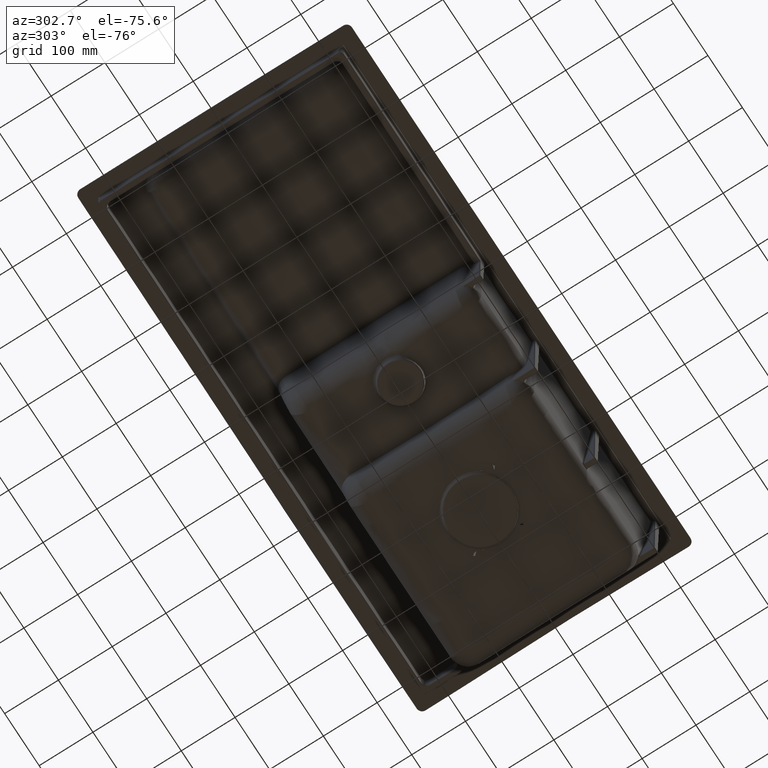
[diagram: clean part render]
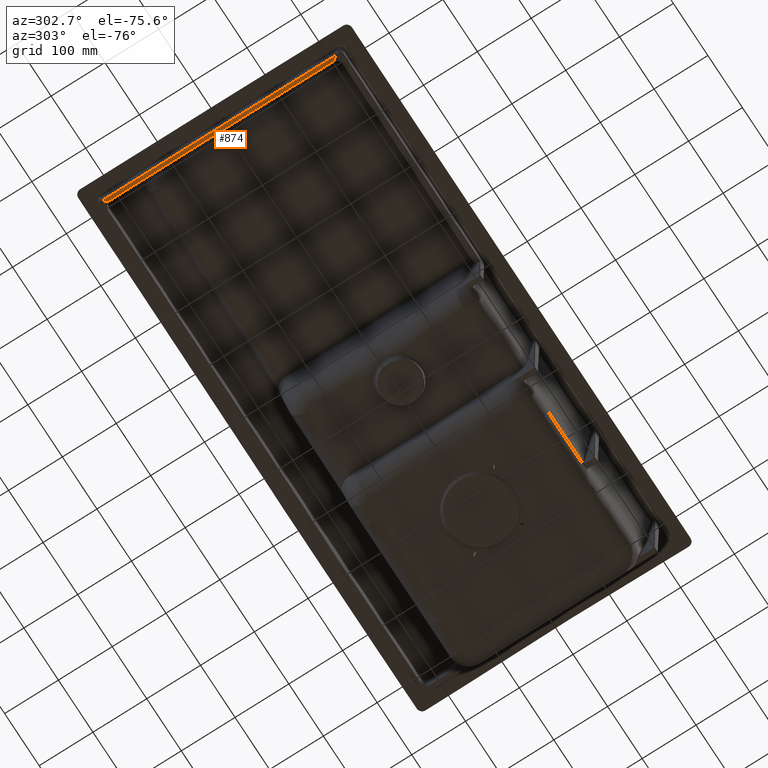
[diagram: same view with one face highlighted and labeled with its STEP entity id]
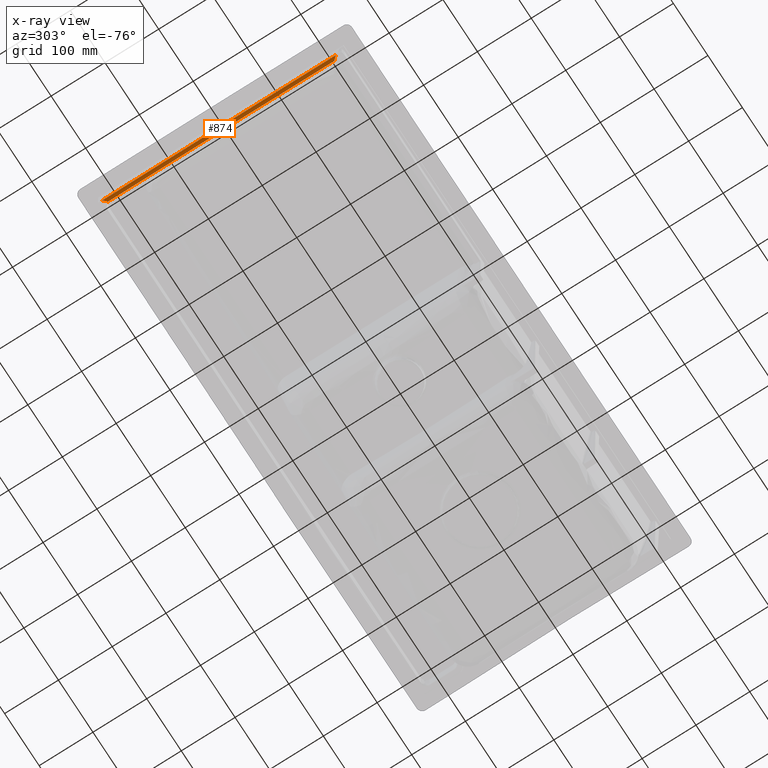
[diagram: x-ray of the same camera — body ghosted, the highlighted face saturated]
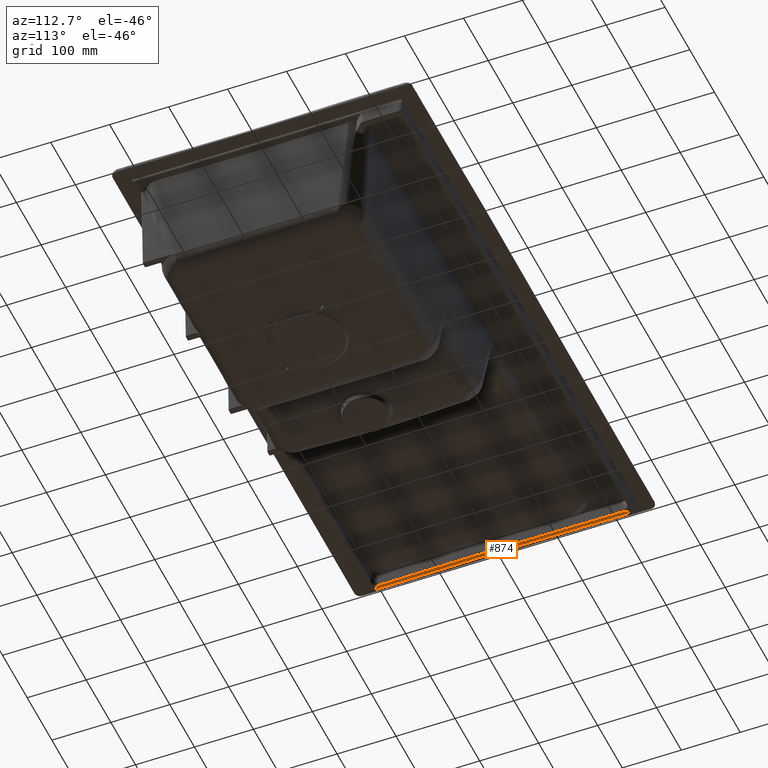
[diagram: same view with one face highlighted and labeled with its STEP entity id]
A machine part, auxiliary view. The second image highlights one B-rep face of the part: STEP entity #874.
The next image is the same camera in x-ray: the body ghosted, the highlighted face saturated — about 0% of this face is hidden behind the body in this view.
A second angle (auxiliary view) of the same face is appended — the face is thin or edge-on in the first view.
In plain terms, the highlighted face is a SurfaceOfExtrusion surface.
Its self-contained STEP definition (entity closure, byte-faithful):
#42=SURFACE_OF_LINEAR_EXTRUSION('',#6033,#95);
#95=VECTOR('',#6541,1.);
#354=(
BOUNDED_CURVE()
B_SPLINE_CURVE(3,(#25744,#25745,#25746,#25747),.UNSPECIFIED.,.F.,.F.)
B_SPLINE_CURVE_WITH_KNOTS((4,4),(0.,1.),.UNSPECIFIED.)
CURVE()
GEOMETRIC_REPRESENTATION_ITEM()
RATIONAL_B_SPLINE_CURVE((1.0000000000016,1.0000000000016,1.0000000000016,
1.0000000000016))
REPRESENTATION_ITEM('')
);
#874=ADVANCED_FACE('',(#1382),#42,.T.);
#1382=FACE_OUTER_BOUND('',#1793,.T.);
#1793=EDGE_LOOP('',(#3338,#3339,#3340,#3341,#3342,#3343,#3344,#3345));
#3338=ORIENTED_EDGE('',*,*,#5079,.T.);
#3339=ORIENTED_EDGE('',*,*,#5077,.T.);
#3340=ORIENTED_EDGE('',*,*,#5075,.T.);
#3341=ORIENTED_EDGE('',*,*,#5230,.F.);
#3342=ORIENTED_EDGE('',*,*,#5231,.F.);
#3343=ORIENTED_EDGE('',*,*,#5232,.F.);
#3344=ORIENTED_EDGE('',*,*,#5233,.F.);
#3345=ORIENTED_EDGE('',*,*,#5234,.T.);
#4270=VERTEX_POINT('',#23208);
#4271=VERTEX_POINT('',#23218);
#4272=VERTEX_POINT('',#23245);
#4273=VERTEX_POINT('',#23293);
#4363=VERTEX_POINT('',#25723);
#4364=VERTEX_POINT('',#25728);
#4365=VERTEX_POINT('',#25743);
#4366=VERTEX_POINT('',#25748);
#5075=EDGE_CURVE('',#4271,#4270,#5902,.T.);
#5077=EDGE_CURVE('',#4272,#4271,#5903,.T.);
#5079=EDGE_CURVE('',#4273,#4272,#5904,.T.);
#5230=EDGE_CURVE('',#4363,#4270,#6029,.T.);
#5231=EDGE_CURVE('',#4364,#4363,#6030,.T.);
#5232=EDGE_CURVE('',#4365,#4364,#6031,.T.);
#5233=EDGE_CURVE('',#4366,#4365,#354,.T.);
#5234=EDGE_CURVE('',#4366,#4273,#6032,.T.);
#5902=B_SPLINE_CURVE_WITH_KNOTS('',3,(#23209,#23210,#23211,#23212,#23213,
#23214,#23215,#23216,#23217),.UNSPECIFIED.,.F.,.F.,(4,1,1,1,2,4),(0.,0.500000000000014,
0.750000000000022,0.875000000000025,0.937500000000013,1.),.UNSPECIFIED.);
#5903=B_SPLINE_CURVE_WITH_KNOTS('',3,(#23232,#23233,#23234,#23235,#23236,
#23237,#23238,#23239,#23240,#23241,#23242,#23243,#23244),.UNSPECIFIED.,
 .F.,.F.,(4,1,1,1,1,1,1,1,1,1,4),(0.,0.0474018195143627,0.163836817306229,
0.280271815098096,0.396706812889962,0.513141810681828,0.629576808473695,
0.746011806265562,0.862446804057429,0.978881801849294,1.),.UNSPECIFIED.);
#5904=B_SPLINE_CURVE_WITH_KNOTS('',3,(#23289,#23290,#23291,#23292),
 .UNSPECIFIED.,.F.,.F.,(4,4),(0.,1.),.UNSPECIFIED.);
#6029=B_SPLINE_CURVE_WITH_KNOTS('',3,(#25719,#25720,#25721,#25722),
 .UNSPECIFIED.,.F.,.F.,(4,4),(0.,1.),.UNSPECIFIED.);
#6030=B_SPLINE_CURVE_WITH_KNOTS('',3,(#25724,#25725,#25726,#25727),
 .UNSPECIFIED.,.F.,.F.,(4,4),(0.,1.),.UNSPECIFIED.);
#6031=B_SPLINE_CURVE_WITH_KNOTS('',3,(#25729,#25730,#25731,#25732,#25733,
#25734,#25735,#25736,#25737,#25738,#25739,#25740,#25741,#25742),
 .UNSPECIFIED.,.F.,.F.,(4,2,2,2,2,2,4),(0.,0.125,0.25,0.5,0.75,0.875,1.),
 .UNSPECIFIED.);
#6032=B_SPLINE_CURVE_WITH_KNOTS('',3,(#25749,#25750,#25751,#25752),
 .UNSPECIFIED.,.F.,.F.,(4,4),(0.,1.),.UNSPECIFIED.);
#6033=B_SPLINE_CURVE_WITH_KNOTS('',3,(#25753,#25754,#25755,#25756,#25757,
#25758,#25759,#25760,#25761,#25762,#25763,#25764,#25765,#25766),
 .UNSPECIFIED.,.F.,.F.,(4,1,1,1,1,1,1,1,1,1,1,4),(0.,0.102854437252473,
0.201730842339317,0.300607247426162,0.399483652513007,0.498360057599852,
0.597236462686697,0.696112867773541,0.794989272860386,0.893865677947231,
0.946932838973616,1.),.UNSPECIFIED.);
#6541=DIRECTION('',(1.,0.,0.));
#23208=CARTESIAN_POINT('',(-464.892466976396,-175.502913333734,-35.9523117414246));
#23209=CARTESIAN_POINT('',(-465.061880367662,-173.488170557571,-35.9349819188289));
#23210=CARTESIAN_POINT('',(-465.061879905327,-173.825935619277,-35.9379577072885));
#23211=CARTESIAN_POINT('',(-465.040830018525,-174.3307979666,-35.9422833581596));
#23212=CARTESIAN_POINT('',(-464.979435729151,-174.916679669811,-35.9470895176345));
#23213=CARTESIAN_POINT('',(-464.93952956246,-175.208839406322,-35.9494326420468));
#23214=CARTESIAN_POINT('',(-464.920453557737,-175.333883337725,-35.9504240073325));
#23215=CARTESIAN_POINT('',(-464.907297696398,-175.417208761892,-35.9510820681008));
#23216=CARTESIAN_POINT('',(-464.907031022564,-175.41999886296,-35.9511053212838));
#23217=CARTESIAN_POINT('',(-464.89301758772,-175.503251546855,-35.9517575845361));
#23218=CARTESIAN_POINT('',(-465.061880367662,-173.488170557572,-35.9349819188289));
#23232=CARTESIAN_POINT('',(-465.061900154894,242.820660566772,-36.070788488321));
#23233=CARTESIAN_POINT('',(-465.061940249398,236.242361664143,-36.0908317321961));
#23234=CARTESIAN_POINT('',(-465.062106376339,213.5055611838,-36.12670816381));
#23235=CARTESIAN_POINT('',(-465.061945710214,174.608306145006,-36.1381528995301));
#23236=CARTESIAN_POINT('',(-465.062055850512,126.142572697528,-35.0469428061996));
#23237=CARTESIAN_POINT('',(-465.062007597108,77.6707796125436,-34.4131360992109));
#23238=CARTESIAN_POINT('',(-465.061985893057,29.1954800007607,-34.1018677070237));
#23239=CARTESIAN_POINT('',(-465.061964730588,-19.2805800873951,-34.0925878875834));
#23240=CARTESIAN_POINT('',(-465.061944029962,-67.7558620693206,-34.3721999289867));
#23241=CARTESIAN_POINT('',(-465.06192388734,-116.229318390176,-34.9033410050806));
#23242=CARTESIAN_POINT('',(-465.061908087354,-151.468893925485,-35.7010065105101));
#23243=CARTESIAN_POINT('',(-465.061884444556,-170.557494765992,-35.9091619860168));
#23244=CARTESIAN_POINT('',(-465.06188043074,-173.488170557752,-35.9349819188305));
#23245=CARTESIAN_POINT('',(-465.061900154624,242.820415632669,-36.0707892345998));
#23289=CARTESIAN_POINT('',(-464.896842793143,244.809693180387,-36.0644262820823));
#23290=CARTESIAN_POINT('',(-465.006876652491,244.151193024377,-36.066634977092));
#23291=CARTESIAN_POINT('',(-465.061896085799,243.488100567788,-36.0687549074843));
#23292=CARTESIAN_POINT('',(-465.061900154624,242.820415632669,-36.0707892345998));
#23293=CARTESIAN_POINT('',(-464.8972645637,244.810328480901,-36.0636547329806));
#25719=CARTESIAN_POINT('',(-471.707498638056,-182.368871130631,-35.9985632218487));
#25720=CARTESIAN_POINT('',(-469.435853701465,-180.080162679692,-35.9874511764756));
#25721=CARTESIAN_POINT('',(-467.164214319605,-177.791467111337,-35.9720653008781));
#25722=CARTESIAN_POINT('',(-464.892577276144,-175.502799613803,-35.9528159728506));
#25723=CARTESIAN_POINT('',(-471.708285490076,-182.369293900379,-35.9960058900756));
#25724=CARTESIAN_POINT('',(-471.708689006326,-164.672782094878,-35.8396672954319));
#25725=CARTESIAN_POINT('',(-471.709098658577,-170.570477454329,-35.9146567440311));
#25726=CARTESIAN_POINT('',(-471.709122601698,-176.469196273916,-35.9682969237751));
#25727=CARTESIAN_POINT('',(-471.709041164234,-182.3688926719,-35.9935442084197));
#25728=CARTESIAN_POINT('',(-471.708690807988,-164.672805439273,-35.8396650504636));
#25729=CARTESIAN_POINT('',(-471.708898598985,223.088052631349,-36.1091455401495));
#25730=CARTESIAN_POINT('',(-471.707803194516,206.927682408111,-36.1286443362974));
#25731=CARTESIAN_POINT('',(-471.709714592632,190.759884771075,-36.1334700783212));
#25732=CARTESIAN_POINT('',(-471.706984387918,158.414862159384,-35.7738334748657));
#25733=CARTESIAN_POINT('',(-471.707968257418,142.25464545852,-35.4098427722215));
#25734=CARTESIAN_POINT('',(-471.710207773721,93.8032967041334,-34.5478534441231));
#25735=CARTESIAN_POINT('',(-471.709509005289,61.4971099394397,-34.2585235601602));
#25736=CARTESIAN_POINT('',(-471.707889518616,-3.11831125739669,-34.0458193074613));
#25737=CARTESIAN_POINT('',(-471.707700662279,-35.4288001795331,-34.1438404694112));
#25738=CARTESIAN_POINT('',(-471.709409817101,-83.8927149132769,-34.5490406306038));
#25739=CARTESIAN_POINT('',(-471.709603310255,-100.044151432003,-34.7264445631776));
#25740=CARTESIAN_POINT('',(-471.707273668724,-132.34418687526,-35.2678105273458));
#25741=CARTESIAN_POINT('',(-471.706089037311,-148.502037030639,-35.6338476247347));
#25742=CARTESIAN_POINT('',(-471.708692439804,-164.672782294932,-35.8396515532074));
#25743=CARTESIAN_POINT('',(-471.7088067506,223.088050990882,-36.1091455717374));
#25744=CARTESIAN_POINT('',(-471.708546082212,251.650271792414,-36.0373766152306));
#25745=CARTESIAN_POINT('',(-471.709056955438,242.127798287546,-36.0816663756952));
#25746=CARTESIAN_POINT('',(-471.709205087663,232.607312894534,-36.0976690384618));
#25747=CARTESIAN_POINT('',(-471.708714789928,223.088052643069,-36.1091456289752));
#25748=CARTESIAN_POINT('',(-471.707253282975,251.650265621908,-36.0360648498883));
#25749=CARTESIAN_POINT('',(-471.707523088686,251.650003091721,-36.0373778649469));
#25750=CARTESIAN_POINT('',(-469.437470845601,249.370075088894,-36.0479817525523));
#25751=CARTESIAN_POINT('',(-467.167420734612,247.090146803576,-36.056777150828));
#25752=CARTESIAN_POINT('',(-464.897372104334,244.810223987983,-36.0644245016621));
#25753=CARTESIAN_POINT('',(-473.561794523862,-215.120457826269,-35.7974132630459));
#25754=CARTESIAN_POINT('',(-473.561842055582,-198.314347141675,-36.0935148173936));
#25755=CARTESIAN_POINT('',(-473.561901827576,-165.343561676907,-36.0150665891713));
#25756=CARTESIAN_POINT('',(-473.561923848397,-116.229318390176,-34.9033410050806));
#25757=CARTESIAN_POINT('',(-473.561943991019,-67.7558620693206,-34.3721999289867));
#25758=CARTESIAN_POINT('',(-473.561964691645,-19.2805800873951,-34.0925878875834));
#25759=CARTESIAN_POINT('',(-473.561985854114,29.1954800007607,-34.1018677070237));
#25760=CARTESIAN_POINT('',(-473.562007558165,77.6707796125436,-34.4131360992109));
#25761=CARTESIAN_POINT('',(-473.562055811569,126.142572697528,-35.0469428061996));
#25762=CARTESIAN_POINT('',(-473.561945671271,174.608306145006,-36.1381528995301));
#25763=CARTESIAN_POINT('',(-473.562114987223,215.599683671711,-36.1260920103458));
#25764=CARTESIAN_POINT('',(-473.561834905371,249.102653669262,-36.0692665587145));
#25765=CARTESIAN_POINT('',(-473.561811120934,266.447498478947,-35.956691306828));
#25766=CARTESIAN_POINT('',(-473.561794445506,275.118452158342,-35.7997529046723));